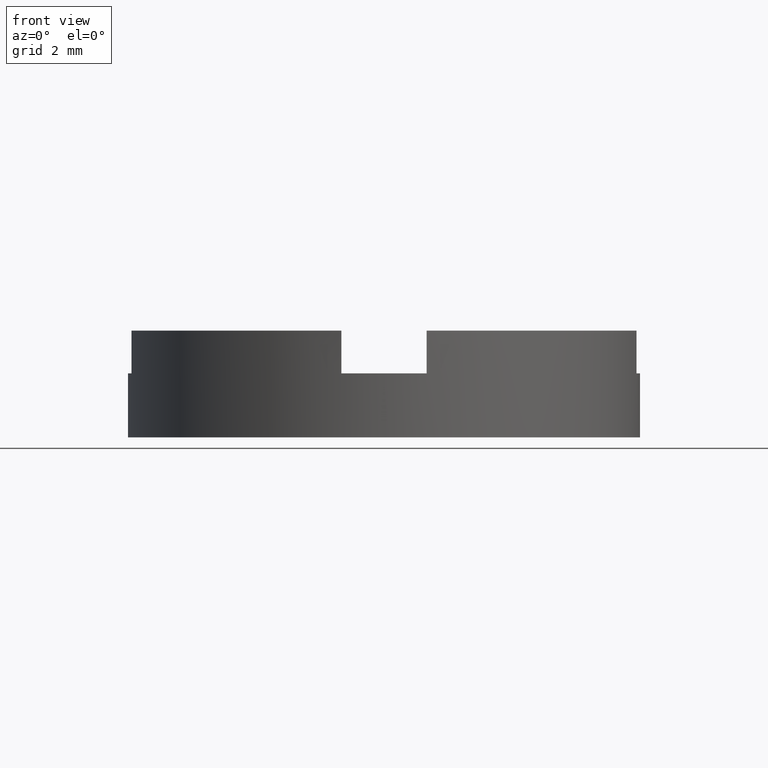
[diagram: clean part render]
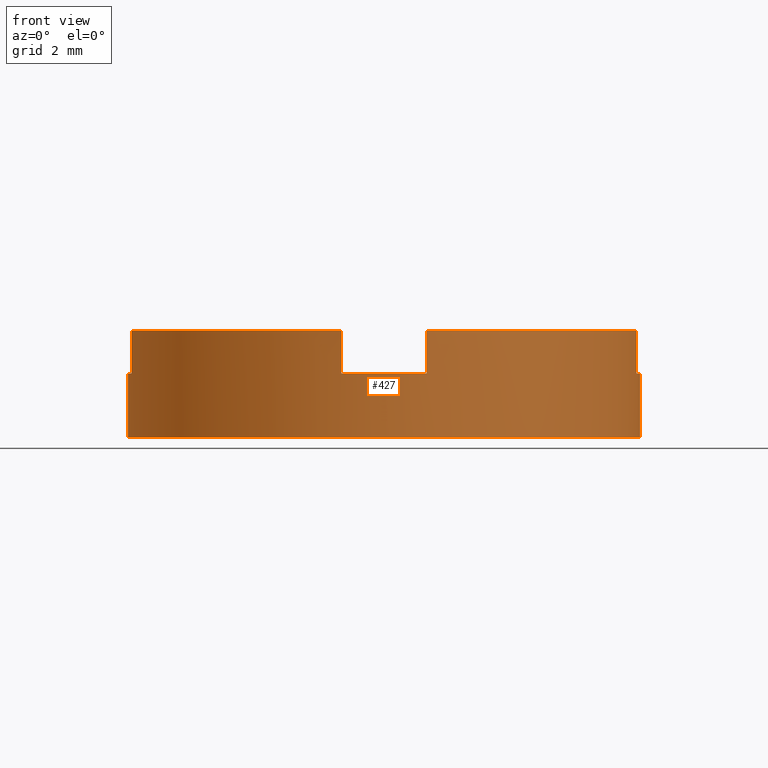
[diagram: same view with one face highlighted and labeled with its STEP entity id]
A machine part, front view. The second image highlights one B-rep face of the part: STEP entity #427.
In plain terms, the highlighted cylindrical surface (partial cylindrical patch) has radius 6 mm, axis along (-0, -0, -1).
Its self-contained STEP definition (entity closure, byte-faithful):
#4 = CARTESIAN_POINT ( 'NONE',  ( -0.9999999999999986677, -5.916079783099617906, 2.500000000000000000 ) ) ;
#13 = EDGE_CURVE ( 'NONE', #97, #662, #346, .T. ) ;
#28 = DIRECTION ( 'NONE',  ( 1.000000000000000000, 0.000000000000000000, 0.000000000000000000 ) ) ;
#29 = EDGE_CURVE ( 'NONE', #720, #588, #606, .T. ) ;
#46 = ORIENTED_EDGE ( 'NONE', *, *, #275, .T. ) ;
#57 = VECTOR ( 'NONE', #763, 1000.000000000000000 ) ;
#68 = CIRCLE ( 'NONE', #445, 6.000000000000000888 ) ;
#77 = VECTOR ( 'NONE', #449, 1000.000000000000000 ) ;
#78 = VECTOR ( 'NONE', #710, 1000.000000000000000 ) ;
#91 = LINE ( 'NONE', #499, #363 ) ;
#97 = VERTEX_POINT ( 'NONE', #342 ) ;
#108 = ORIENTED_EDGE ( 'NONE', *, *, #544, .F. ) ;
#132 = AXIS2_PLACEMENT_3D ( 'NONE', #753, #444, #282 ) ;
#135 = CARTESIAN_POINT ( 'NONE',  ( 6.000000000000000888, 7.347880794884120722E-16, 1.500000000000000000 ) ) ;
#137 = LINE ( 'NONE', #176, #374 ) ;
#140 = LINE ( 'NONE', #249, #401 ) ;
#150 = AXIS2_PLACEMENT_3D ( 'NONE', #191, #724, #188 ) ;
#156 = CIRCLE ( 'NONE', #150, 6.000000000000000888 ) ;
#158 = CARTESIAN_POINT ( 'NONE',  ( -6.000000000000000888, 0.000000000000000000, 0.000000000000000000 ) ) ;
#170 = DIRECTION ( 'NONE',  ( 1.000000000000000000, 0.000000000000000000, 0.000000000000000000 ) ) ;
#174 = AXIS2_PLACEMENT_3D ( 'NONE', #696, #218, #518 ) ;
#175 = EDGE_CURVE ( 'NONE', #726, #743, #602, .T. ) ;
#176 = CARTESIAN_POINT ( 'NONE',  ( 5.916079783099613465, -1.000000000000023315, 1.500000000000000000 ) ) ;
#188 = DIRECTION ( 'NONE',  ( 1.000000000000000000, 0.000000000000000000, 0.000000000000000000 ) ) ;
#191 = CARTESIAN_POINT ( 'NONE',  ( 0.000000000000000000, 0.000000000000000000, 2.500000000000000000 ) ) ;
#211 = ORIENTED_EDGE ( 'NONE', *, *, #702, .F. ) ;
#213 = AXIS2_PLACEMENT_3D ( 'NONE', #269, #321, #170 ) ;
#215 = CARTESIAN_POINT ( 'NONE',  ( 0.000000000000000000, 0.000000000000000000, 2.500000000000000000 ) ) ;
#218 = DIRECTION ( 'NONE',  ( -0.000000000000000000, 0.000000000000000000, 1.000000000000000000 ) ) ;
#237 = ORIENTED_EDGE ( 'NONE', *, *, #13, .F. ) ;
#244 = CARTESIAN_POINT ( 'NONE',  ( 1.000000000000001332, -5.916079783099617018, 1.500000000000000000 ) ) ;
#249 = CARTESIAN_POINT ( 'NONE',  ( 6.000000000000000888, 7.347880794884120722E-16, 2.500000000000000000 ) ) ;
#257 = DIRECTION ( 'NONE',  ( 0.000000000000000000, 0.000000000000000000, 1.000000000000000000 ) ) ;
#265 = EDGE_CURVE ( 'NONE', #757, #97, #350, .T. ) ;
#269 = CARTESIAN_POINT ( 'NONE',  ( 0.000000000000000000, 0.000000000000000000, 1.500000000000000000 ) ) ;
#275 = EDGE_CURVE ( 'NONE', #757, #356, #609, .T. ) ;
#280 = CARTESIAN_POINT ( 'NONE',  ( 1.000000000000001332, -5.916079783099617018, 2.500000000000000000 ) ) ;
#282 = DIRECTION ( 'NONE',  ( -1.000000000000000000, 0.000000000000000000, 0.000000000000000000 ) ) ;
#284 = DIRECTION ( 'NONE',  ( -0.000000000000000000, -0.000000000000000000, -1.000000000000000000 ) ) ;
#302 = CARTESIAN_POINT ( 'NONE',  ( 5.916079783099613465, -1.000000000000023315, 2.500000000000000000 ) ) ;
#321 = DIRECTION ( 'NONE',  ( -0.000000000000000000, 0.000000000000000000, 1.000000000000000000 ) ) ;
#336 = ORIENTED_EDGE ( 'NONE', *, *, #265, .F. ) ;
#339 = FACE_OUTER_BOUND ( 'NONE', #630, .T. ) ;
#342 = CARTESIAN_POINT ( 'NONE',  ( -5.916079783099620570, -0.9999999999999790168, 1.500000000000000000 ) ) ;
#346 = LINE ( 'NONE', #418, #57 ) ;
#350 = CIRCLE ( 'NONE', #174, 6.000000000000000888 ) ;
#356 = VERTEX_POINT ( 'NONE', #158 ) ;
#362 = CARTESIAN_POINT ( 'NONE',  ( 5.916079783099613465, -1.000000000000023315, 1.500000000000000000 ) ) ;
#363 = VECTOR ( 'NONE', #543, 1000.000000000000000 ) ;
#368 = ORIENTED_EDGE ( 'NONE', *, *, #451, .T. ) ;
#374 = VECTOR ( 'NONE', #420, 1000.000000000000000 ) ;
#383 = CYLINDRICAL_SURFACE ( 'NONE', #132, 6.000000000000000888 ) ;
#388 = EDGE_CURVE ( 'NONE', #588, #437, #68, .T. ) ;
#390 = ORIENTED_EDGE ( 'NONE', *, *, #29, .F. ) ;
#394 = ORIENTED_EDGE ( 'NONE', *, *, #745, .T. ) ;
#395 = CIRCLE ( 'NONE', #213, 6.000000000000000888 ) ;
#401 = VECTOR ( 'NONE', #284, 1000.000000000000000 ) ;
#408 = CARTESIAN_POINT ( 'NONE',  ( -6.000000000000000888, 0.000000000000000000, 2.500000000000000000 ) ) ;
#418 = CARTESIAN_POINT ( 'NONE',  ( -5.916079783099620570, -0.9999999999999790168, 1.500000000000000000 ) ) ;
#420 = DIRECTION ( 'NONE',  ( -0.000000000000000000, -0.000000000000000000, 1.000000000000000000 ) ) ;
#427 = ADVANCED_FACE ( 'NONE', ( #339 ), #383, .T. ) ;
#430 = CARTESIAN_POINT ( 'NONE',  ( 6.000000000000000888, 7.347880794884120722E-16, 0.000000000000000000 ) ) ;
#437 = VERTEX_POINT ( 'NONE', #302 ) ;
#444 = DIRECTION ( 'NONE',  ( -0.000000000000000000, -0.000000000000000000, -1.000000000000000000 ) ) ;
#445 = AXIS2_PLACEMENT_3D ( 'NONE', #215, #257, #507 ) ;
#449 = DIRECTION ( 'NONE',  ( -0.000000000000000000, -0.000000000000000000, -1.000000000000000000 ) ) ;
#451 = EDGE_CURVE ( 'NONE', #356, #717, #634, .T. ) ;
#457 = VERTEX_POINT ( 'NONE', #4 ) ;
#465 = CARTESIAN_POINT ( 'NONE',  ( -5.916079783099620570, -0.9999999999999790168, 2.500000000000000000 ) ) ;
#472 = CARTESIAN_POINT ( 'NONE',  ( 1.000000000000001332, -5.916079783099617018, 1.500000000000000000 ) ) ;
#487 = DIRECTION ( 'NONE',  ( 0.000000000000000000, 0.000000000000000000, 1.000000000000000000 ) ) ;
#489 = ORIENTED_EDGE ( 'NONE', *, *, #778, .F. ) ;
#497 = VERTEX_POINT ( 'NONE', #760 ) ;
#499 = CARTESIAN_POINT ( 'NONE',  ( -0.9999999999999986677, -5.916079783099617906, 1.500000000000000000 ) ) ;
#500 = ORIENTED_EDGE ( 'NONE', *, *, #616, .T. ) ;
#502 = AXIS2_PLACEMENT_3D ( 'NONE', #546, #487, #698 ) ;
#507 = DIRECTION ( 'NONE',  ( 1.000000000000000000, 0.000000000000000000, 0.000000000000000000 ) ) ;
#518 = DIRECTION ( 'NONE',  ( 1.000000000000000000, 0.000000000000000000, 0.000000000000000000 ) ) ;
#524 = CARTESIAN_POINT ( 'NONE',  ( 0.000000000000000000, 0.000000000000000000, 1.500000000000000000 ) ) ;
#543 = DIRECTION ( 'NONE',  ( -0.000000000000000000, -0.000000000000000000, 1.000000000000000000 ) ) ;
#544 = EDGE_CURVE ( 'NONE', #497, #720, #395, .T. ) ;
#546 = CARTESIAN_POINT ( 'NONE',  ( 0.000000000000000000, 0.000000000000000000, 0.000000000000000000 ) ) ;
#562 = AXIS2_PLACEMENT_3D ( 'NONE', #524, #773, #28 ) ;
#588 = VERTEX_POINT ( 'NONE', #280 ) ;
#598 = CARTESIAN_POINT ( 'NONE',  ( -6.000000000000000888, 0.000000000000000000, 1.500000000000000000 ) ) ;
#602 = CIRCLE ( 'NONE', #562, 6.000000000000000888 ) ;
#606 = LINE ( 'NONE', #472, #78 ) ;
#609 = LINE ( 'NONE', #408, #77 ) ;
#616 = EDGE_CURVE ( 'NONE', #726, #437, #137, .T. ) ;
#630 = EDGE_LOOP ( 'NONE', ( #211, #652, #500, #750, #390, #108, #394, #489, #237, #336, #46, #368 ) ) ;
#634 = CIRCLE ( 'NONE', #502, 6.000000000000000888 ) ;
#652 = ORIENTED_EDGE ( 'NONE', *, *, #175, .F. ) ;
#662 = VERTEX_POINT ( 'NONE', #465 ) ;
#696 = CARTESIAN_POINT ( 'NONE',  ( 0.000000000000000000, 0.000000000000000000, 1.500000000000000000 ) ) ;
#698 = DIRECTION ( 'NONE',  ( 1.000000000000000000, 0.000000000000000000, 0.000000000000000000 ) ) ;
#702 = EDGE_CURVE ( 'NONE', #743, #717, #140, .T. ) ;
#710 = DIRECTION ( 'NONE',  ( -0.000000000000000000, -0.000000000000000000, 1.000000000000000000 ) ) ;
#717 = VERTEX_POINT ( 'NONE', #430 ) ;
#720 = VERTEX_POINT ( 'NONE', #244 ) ;
#724 = DIRECTION ( 'NONE',  ( 0.000000000000000000, 0.000000000000000000, 1.000000000000000000 ) ) ;
#726 = VERTEX_POINT ( 'NONE', #362 ) ;
#743 = VERTEX_POINT ( 'NONE', #135 ) ;
#745 = EDGE_CURVE ( 'NONE', #497, #457, #91, .T. ) ;
#750 = ORIENTED_EDGE ( 'NONE', *, *, #388, .F. ) ;
#753 = CARTESIAN_POINT ( 'NONE',  ( 0.000000000000000000, 0.000000000000000000, 2.500000000000000000 ) ) ;
#757 = VERTEX_POINT ( 'NONE', #598 ) ;
#760 = CARTESIAN_POINT ( 'NONE',  ( -0.9999999999999986677, -5.916079783099617906, 1.500000000000000000 ) ) ;
#763 = DIRECTION ( 'NONE',  ( -0.000000000000000000, -0.000000000000000000, 1.000000000000000000 ) ) ;
#773 = DIRECTION ( 'NONE',  ( -0.000000000000000000, 0.000000000000000000, 1.000000000000000000 ) ) ;
#778 = EDGE_CURVE ( 'NONE', #662, #457, #156, .T. ) ;